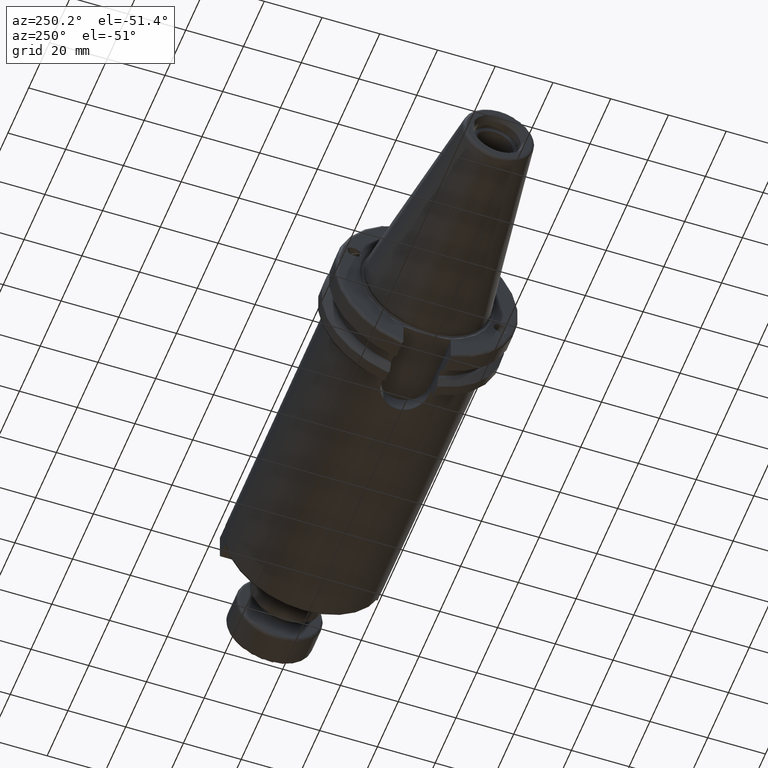
[diagram: clean part render]
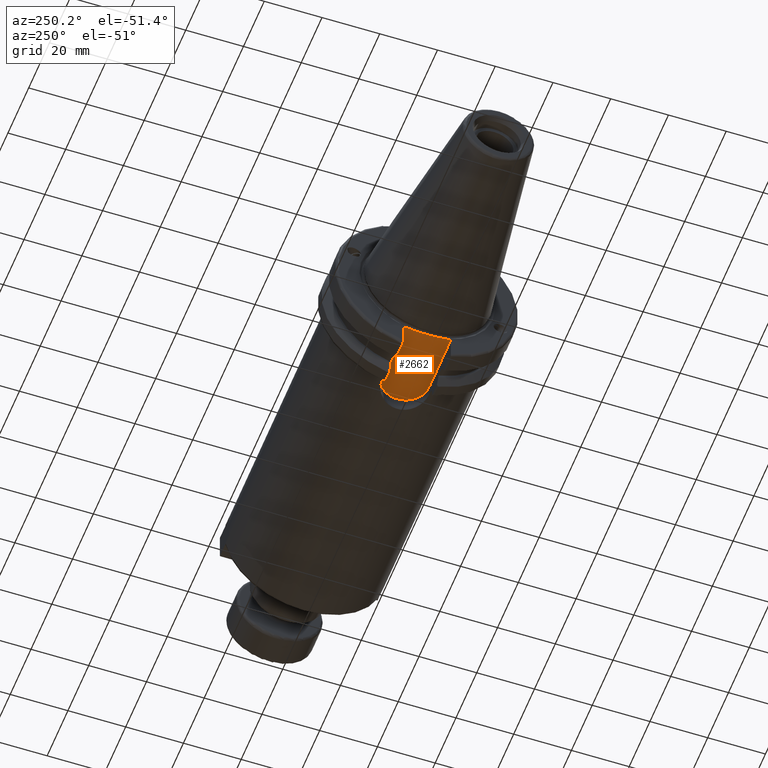
[diagram: same view with one face highlighted and labeled with its STEP entity id]
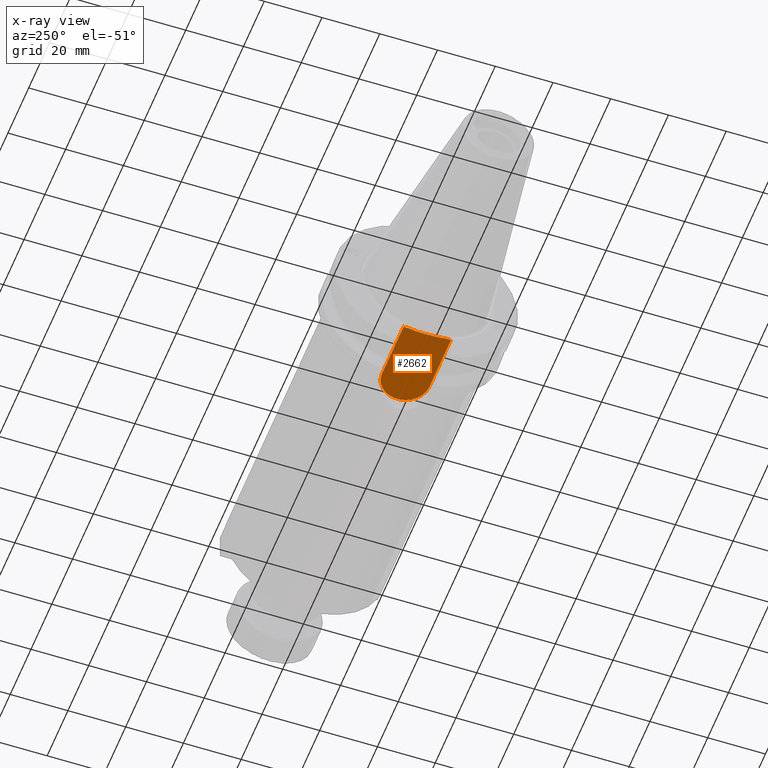
[diagram: x-ray of the same camera — body ghosted, the highlighted face saturated]
A machine part, auxiliary view. The second image highlights one B-rep face of the part: STEP entity #2662.
The next image is the same camera in x-ray: the body ghosted, the highlighted face saturated — about 0% of this face is hidden behind the body in this view.
In plain terms, the highlighted planar face has unit normal (0, 0, 1).
Its self-contained STEP definition (entity closure, byte-faithful):
#67=(
BOUNDED_CURVE()
B_SPLINE_CURVE(2,(#4943,#4944,#4945),.UNSPECIFIED.,.F.,.F.)
B_SPLINE_CURVE_WITH_KNOTS((3,3),(0.,0.339841691449478),.UNSPECIFIED.)
CURVE()
GEOMETRIC_REPRESENTATION_ITEM()
RATIONAL_B_SPLINE_CURVE((1.,1.00266518417081,1.))
REPRESENTATION_ITEM('')
);
#68=(
BOUNDED_CURVE()
B_SPLINE_CURVE(2,(#4948,#4949,#4950),.UNSPECIFIED.,.F.,.F.)
B_SPLINE_CURVE_WITH_KNOTS((3,3),(0.,0.339841691449478),.UNSPECIFIED.)
CURVE()
GEOMETRIC_REPRESENTATION_ITEM()
RATIONAL_B_SPLINE_CURVE((1.,1.00266518417081,1.))
REPRESENTATION_ITEM('')
);
#189=PLANE('',#3023);
#312=FACE_OUTER_BOUND('',#482,.T.);
#482=EDGE_LOOP('',(#2193,#2194,#2195,#2196,#2197,#2198,#2199,#2200));
#567=CIRCLE('',#2841,8.19);
#782=LINE('',#4761,#950);
#795=LINE('',#4850,#963);
#800=LINE('',#4920,#968);
#801=LINE('',#4923,#969);
#804=LINE('',#4947,#972);
#950=VECTOR('',#3555,10.);
#963=VECTOR('',#3576,10.);
#968=VECTOR('',#3603,10.);
#969=VECTOR('',#3606,10.);
#972=VECTOR('',#3631,10.);
#1090=VERTEX_POINT('',#4010);
#1091=VERTEX_POINT('',#4012);
#1231=VERTEX_POINT('',#4760);
#1248=VERTEX_POINT('',#4848);
#1258=VERTEX_POINT('',#4919);
#1259=VERTEX_POINT('',#4921);
#1265=VERTEX_POINT('',#4942);
#1266=VERTEX_POINT('',#4946);
#1352=EDGE_CURVE('',#1091,#1090,#567,.T.);
#1551=EDGE_CURVE('',#1231,#1091,#782,.T.);
#1575=EDGE_CURVE('',#1090,#1248,#795,.T.);
#1592=EDGE_CURVE('',#1231,#1258,#800,.T.);
#1594=EDGE_CURVE('',#1259,#1248,#801,.T.);
#1603=EDGE_CURVE('',#1265,#1259,#67,.T.);
#1604=EDGE_CURVE('',#1266,#1265,#804,.T.);
#1605=EDGE_CURVE('',#1258,#1266,#68,.T.);
#2193=ORIENTED_EDGE('',*,*,#1594,.F.);
#2194=ORIENTED_EDGE('',*,*,#1603,.F.);
#2195=ORIENTED_EDGE('',*,*,#1604,.F.);
#2196=ORIENTED_EDGE('',*,*,#1605,.F.);
#2197=ORIENTED_EDGE('',*,*,#1592,.F.);
#2198=ORIENTED_EDGE('',*,*,#1551,.T.);
#2199=ORIENTED_EDGE('',*,*,#1352,.T.);
#2200=ORIENTED_EDGE('',*,*,#1575,.T.);
#2662=ADVANCED_FACE('',(#312),#189,.F.);
#2841=AXIS2_PLACEMENT_3D('',#4013,#3172,#3173);
#3023=AXIS2_PLACEMENT_3D('',#4941,#3629,#3630);
#3172=DIRECTION('center_axis',(0.,0.,-1.));
#3173=DIRECTION('ref_axis',(0.,1.,0.));
#3555=DIRECTION('',(1.,5.33504576946255E-17,0.));
#3576=DIRECTION('',(-1.,-5.33504576946255E-17,0.));
#3603=DIRECTION('',(0.,-1.,0.));
#3606=DIRECTION('',(0.,-1.,0.));
#3629=DIRECTION('center_axis',(0.,0.,1.));
#3630=DIRECTION('ref_axis',(1.,0.,0.));
#3631=DIRECTION('',(0.,-1.,0.));
#4010=CARTESIAN_POINT('',(21.81,-8.19,-22.6));
#4012=CARTESIAN_POINT('',(21.81,8.19,-22.6));
#4013=CARTESIAN_POINT('Origin',(21.81,0.,-22.6));
#4760=CARTESIAN_POINT('',(1.,8.19,-22.6));
#4761=CARTESIAN_POINT('',(1.,8.19,-22.6));
#4848=CARTESIAN_POINT('',(1.,-8.19,-22.6));
#4850=CARTESIAN_POINT('',(21.81,-8.19,-22.6));
#4919=CARTESIAN_POINT('',(0.999999999999997,6.4412731660752,-22.6));
#4920=CARTESIAN_POINT('',(1.,15.875,-22.6));
#4921=CARTESIAN_POINT('',(1.,-6.44127316607517,-22.6));
#4923=CARTESIAN_POINT('',(1.,15.875,-22.6));
#4941=CARTESIAN_POINT('Origin',(14.62,-5.55111512312578E-16,-22.6));
#4942=CARTESIAN_POINT('',(1.4,-3.06715581894774,-22.6));
#4943=CARTESIAN_POINT('Ctrl Pts',(1.4,-3.06715581894779,-22.6));
#4944=CARTESIAN_POINT('Ctrl Pts',(1.27097107950098,-4.7289737297758,-22.6));
#4945=CARTESIAN_POINT('Ctrl Pts',(1.,-6.44127316607519,-22.6));
#4946=CARTESIAN_POINT('',(1.4,3.06715581894774,-22.6));
#4947=CARTESIAN_POINT('',(1.4,11.4035898384862,-22.6));
#4948=CARTESIAN_POINT('Ctrl Pts',(1.,6.44127316607519,-22.6));
#4949=CARTESIAN_POINT('Ctrl Pts',(1.27097107950098,4.7289737297758,-22.6));
#4950=CARTESIAN_POINT('Ctrl Pts',(1.4,3.06715581894779,-22.6));